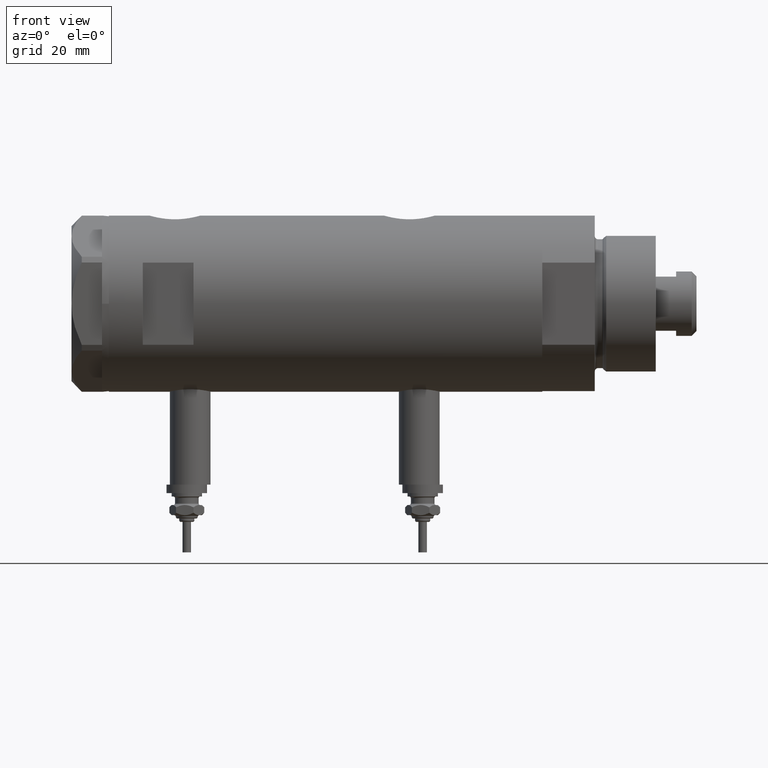
[diagram: clean part render]
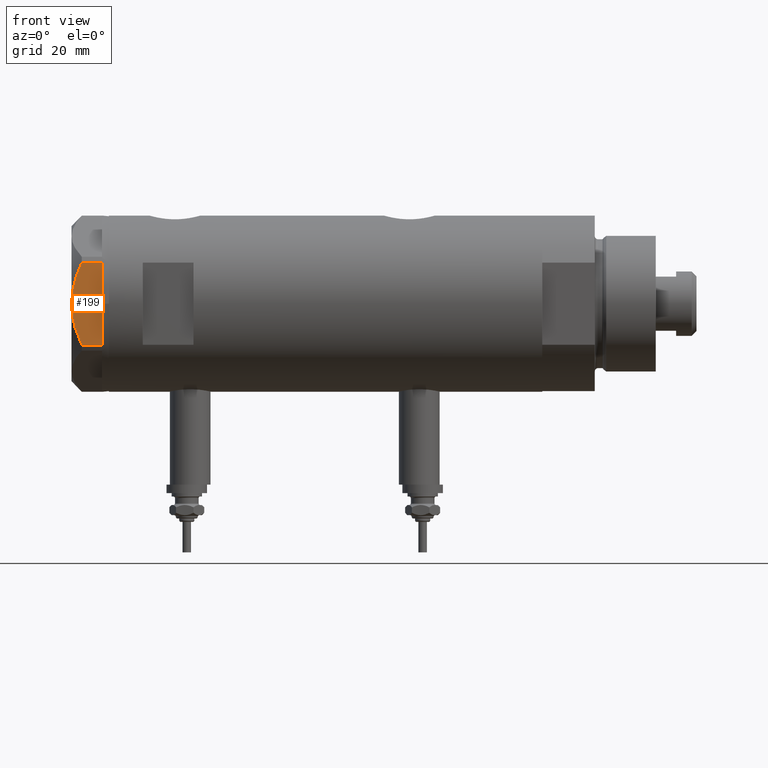
[diagram: same view with one face highlighted and labeled with its STEP entity id]
A machine part, front view. The second image highlights one B-rep face of the part: STEP entity #199.
In plain terms, the highlighted planar face has unit normal (-0, 1, -0).
Its self-contained STEP definition (entity closure, byte-faithful):
#13 = CARTESIAN_POINT ( 'NONE',  ( -22.99999999999993250, -4.203926054641964782, 8.641681223122507305 ) ) ;
#48 = VERTEX_POINT ( 'NONE', #3091 ) ;
#71 = VERTEX_POINT ( 'NONE', #6035 ) ;
#86 = VECTOR ( 'NONE', #5035, 1000.000000000000000 ) ;
#143 = CARTESIAN_POINT ( 'NONE',  ( -22.99999999999990763, -11.68282849742335827, 6.206372352695425754 ) ) ;
#178 = CARTESIAN_POINT ( 'NONE',  ( -22.99999999999990763, -12.15905619136147386, 0.000000000000000000 ) ) ;
#199 = ADVANCED_FACE ( 'NONE', ( #1201 ), #4631, .F. ) ;
#267 = LINE ( 'NONE', #4745, #6320 ) ;
#297 = CARTESIAN_POINT ( 'NONE',  ( -22.99999999999998224, 8.246028007352361300, 7.571131808646907935 ) ) ;
#377 = VERTEX_POINT ( 'NONE', #178 ) ;
#385 = LINE ( 'NONE', #900, #3163 ) ;
#417 = VECTOR ( 'NONE', #3786, 1000.000000000000000 ) ;
#636 = ORIENTED_EDGE ( 'NONE', *, *, #3055, .F. ) ;
#900 = CARTESIAN_POINT ( 'NONE',  ( -22.99999999999999645, 13.27905619136132032, 0.000000000000000000 ) ) ;
#1190 = CARTESIAN_POINT ( 'NONE',  ( -22.99999999999999645, 13.27905619136132032, 0.000000000000000000 ) ) ;
#1201 = FACE_OUTER_BOUND ( 'NONE', #3097, .T. ) ;
#1222 = LINE ( 'NONE', #1190, #86 ) ;
#1315 = CARTESIAN_POINT ( 'NONE',  ( -22.99999999999998579, 10.23890159976122050, 6.840812428290914404 ) ) ;
#1505 = AXIS2_PLACEMENT_3D ( 'NONE', #5231, #5167, #4690 ) ;
#1535 = CARTESIAN_POINT ( 'NONE',  ( -22.99999999999992895, -5.228918809624124364, 8.433337033849854336 ) ) ;
#1838 = ORIENTED_EDGE ( 'NONE', *, *, #4548, .T. ) ;
#1952 = CARTESIAN_POINT ( 'NONE',  ( -22.99999999999992184, -7.253003311474388148, 7.903276810347638737 ) ) ;
#2009 = CARTESIAN_POINT ( 'NONE',  ( -23.00000000000004619, -8.112498833180673323E-14, 9.000000000000000000 ) ) ;
#2049 = CARTESIAN_POINT ( 'NONE',  ( -22.99999999999991118, -10.22738952213794761, 6.832470313674783746 ) ) ;
#2082 = CARTESIAN_POINT ( 'NONE',  ( -22.99999999999990763, -12.15905619136147564, 5.983800287807627072 ) ) ;
#2127 = EDGE_CURVE ( 'NONE', #3727, #5994, #1222, .T. ) ;
#2209 = DIRECTION ( 'NONE',  ( 0.000000000000000000, 0.000000000000000000, 1.000000000000000000 ) ) ;
#2221 = EDGE_CURVE ( 'NONE', #377, #6202, #267, .T. ) ;
#2320 = EDGE_CURVE ( 'NONE', #71, #2642, #3017, .T. ) ;
#2522 = CARTESIAN_POINT ( 'NONE',  ( -22.99999999999991829, -9.734726261263297431, 7.028924700095662281 ) ) ;
#2540 = ORIENTED_EDGE ( 'NONE', *, *, #2221, .T. ) ;
#2556 = ORIENTED_EDGE ( 'NONE', *, *, #4202, .T. ) ;
#2560 = CARTESIAN_POINT ( 'NONE',  ( -22.99999999999995026, -1.063773509315737442, 8.981438083606830602 ) ) ;
#2642 = VERTEX_POINT ( 'NONE', #6151 ) ;
#2972 = ORIENTED_EDGE ( 'NONE', *, *, #2320, .F. ) ;
#2994 = CARTESIAN_POINT ( 'NONE',  ( -22.99999999999990763, -12.15905619136147564, 5.983800287807627072 ) ) ;
#3017 = B_SPLINE_CURVE_WITH_KNOTS ( 'NONE', 3,
 ( #4648, #4300, #1315, #3275, #297, #3790, #5762, #5640, #3335, #5279 ),
 .UNSPECIFIED., .F., .F.,
 ( 4, 2, 2, 2, 4 ),
 ( 0.03516523594057416324, 0.03831677594541234300, 0.03989254594783143981, 0.04146831595025052969, 0.04777139595992690307 ),
 .UNSPECIFIED. ) ;
#3055 = EDGE_CURVE ( 'NONE', #2642, #6202, #3254, .T. ) ;
#3091 = CARTESIAN_POINT ( 'NONE',  ( -22.99999999999990763, -12.12435565298232021, 0.000000000000000000 ) ) ;
#3097 = EDGE_LOOP ( 'NONE', ( #2972, #2556, #4873, #1838, #5667, #2540, #636 ) ) ;
#3163 = VECTOR ( 'NONE', #4798, 1000.000000000000000 ) ;
#3254 = B_SPLINE_CURVE_WITH_KNOTS ( 'NONE', 3,
 ( #2009, #5472, #2560, #5918, #3556, #13, #1535, #1952, #4959, #2522, #2049, #4013, #143, #2082 ),
 .UNSPECIFIED., .F., .F.,
 ( 4, 2, 2, 2, 2, 2, 4 ),
 ( 0.04777139595992690307, 0.04934380568070229761, 0.05091621540147769215, 0.05406103484302848122, 0.05720585428457927030, 0.05877826400535466483, 0.06035067372613005937 ),
 .UNSPECIFIED. ) ;
#3275 = CARTESIAN_POINT ( 'NONE',  ( -22.99999999999997513, 8.748091966971378142, 7.396818978284571244 ) ) ;
#3310 = EDGE_CURVE ( 'NONE', #48, #377, #385, .T. ) ;
#3335 = CARTESIAN_POINT ( 'NONE',  ( -22.99999999999995381, 2.122900714018063795, 9.000000000000092371 ) ) ;
#3359 = LINE ( 'NONE', #3844, #417 ) ;
#3556 = CARTESIAN_POINT ( 'NONE',  ( -22.99999999999993960, -2.643615312305158671, 8.854304560636265364 ) ) ;
#3727 = VERTEX_POINT ( 'NONE', #4096 ) ;
#3786 = DIRECTION ( 'NONE',  ( 3.527173405730720141E-15, -1.000000000000000000, 0.000000000000000000 ) ) ;
#3790 = CARTESIAN_POINT ( 'NONE',  ( -22.99999999999996803, 7.239756182922199024, 7.892186063422847120 ) ) ;
#3844 = CARTESIAN_POINT ( 'NONE',  ( -22.99999999999999645, 13.27905619136132032, 0.000000000000000000 ) ) ;
#3889 = VECTOR ( 'NONE', #5261, 1000.000000000000000 ) ;
#4013 = CARTESIAN_POINT ( 'NONE',  ( -22.99999999999991118, -11.20155944044816287, 6.421102682632757741 ) ) ;
#4096 = CARTESIAN_POINT ( 'NONE',  ( -22.99999999999999289, 12.15905619136133176, 0.000000000000000000 ) ) ;
#4202 = EDGE_CURVE ( 'NONE', #71, #3727, #6227, .T. ) ;
#4300 = CARTESIAN_POINT ( 'NONE',  ( -22.99999999999998934, 11.20825071633916359, 6.428173306378450746 ) ) ;
#4548 = EDGE_CURVE ( 'NONE', #5994, #48, #3359, .T. ) ;
#4631 = PLANE ( 'NONE',  #1505 ) ;
#4648 = CARTESIAN_POINT ( 'NONE',  ( -22.99999999999999289, 12.15905619136133176, 5.983800287807616414 ) ) ;
#4690 = DIRECTION ( 'NONE',  ( -3.527173405730720141E-15, 1.000000000000000000, 0.000000000000000000 ) ) ;
#4745 = CARTESIAN_POINT ( 'NONE',  ( -22.99999999999990763, -12.15905619136147386, 9.000000000000000000 ) ) ;
#4798 = DIRECTION ( 'NONE',  ( 3.527173405730720141E-15, -1.000000000000000000, 0.000000000000000000 ) ) ;
#4873 = ORIENTED_EDGE ( 'NONE', *, *, #2127, .T. ) ;
#4959 = CARTESIAN_POINT ( 'NONE',  ( -22.99999999999991829, -8.252113629125268801, 7.581642062680223226 ) ) ;
#5035 = DIRECTION ( 'NONE',  ( 3.527173405730720141E-15, -1.000000000000000000, 0.000000000000000000 ) ) ;
#5167 = DIRECTION ( 'NONE',  ( 1.000000000000000000, 3.527173405730720141E-15, -0.000000000000000000 ) ) ;
#5231 = CARTESIAN_POINT ( 'NONE',  ( -22.99999999999999645, 13.27905619136132032, 9.000000000000000000 ) ) ;
#5261 = DIRECTION ( 'NONE',  ( 0.000000000000000000, 0.000000000000000000, -1.000000000000000000 ) ) ;
#5279 = CARTESIAN_POINT ( 'NONE',  ( -23.00000000000004619, -8.112498833180673323E-14, 9.000000000000000000 ) ) ;
#5447 = CARTESIAN_POINT ( 'NONE',  ( -22.99999999999999289, 12.12435565298215856, 0.000000000000000000 ) ) ;
#5472 = CARTESIAN_POINT ( 'NONE',  ( -22.99999999999995737, -0.5295934231897764244, 9.000000000000092371 ) ) ;
#5640 = CARTESIAN_POINT ( 'NONE',  ( -22.99999999999996803, 4.194757081058972936, 8.703000351525203016 ) ) ;
#5667 = ORIENTED_EDGE ( 'NONE', *, *, #3310, .T. ) ;
#5678 = CARTESIAN_POINT ( 'NONE',  ( -22.99999999999999289, 12.15905619136133176, 9.000000000000000000 ) ) ;
#5762 = CARTESIAN_POINT ( 'NONE',  ( -22.99999999999997158, 6.734330413511419700, 8.039389741252668031 ) ) ;
#5918 = CARTESIAN_POINT ( 'NONE',  ( -22.99999999999993960, -2.119709279061923191, 8.908535212173198659 ) ) ;
#5994 = VERTEX_POINT ( 'NONE', #5447 ) ;
#6035 = CARTESIAN_POINT ( 'NONE',  ( -22.99999999999999289, 12.15905619136133176, 5.983800287807616414 ) ) ;
#6151 = CARTESIAN_POINT ( 'NONE',  ( -23.00000000000004619, -8.112498833180673323E-14, 9.000000000000000000 ) ) ;
#6202 = VERTEX_POINT ( 'NONE', #2994 ) ;
#6227 = LINE ( 'NONE', #5678, #3889 ) ;
#6320 = VECTOR ( 'NONE', #2209, 1000.000000000000000 ) ;